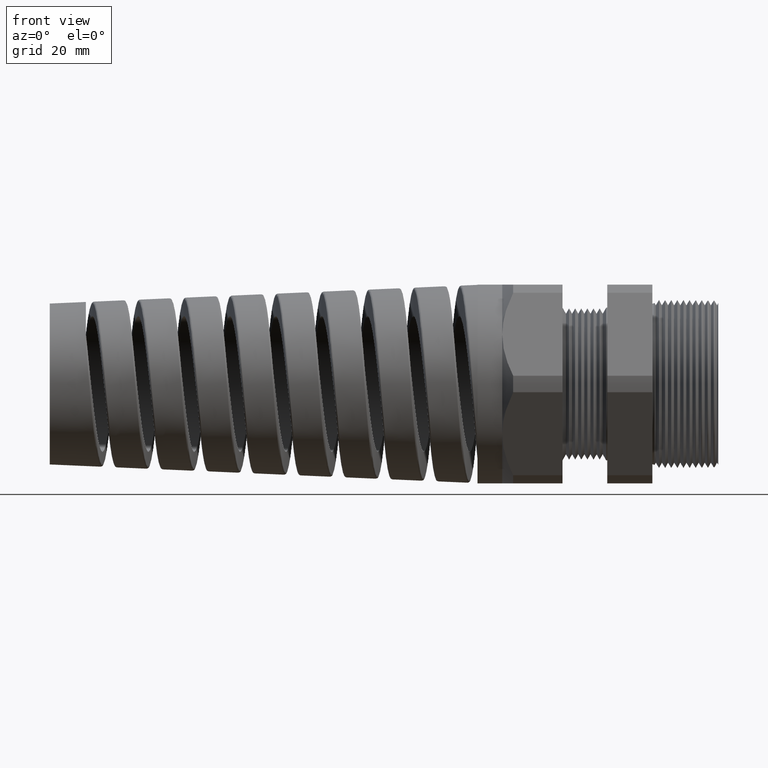
[diagram: clean part render]
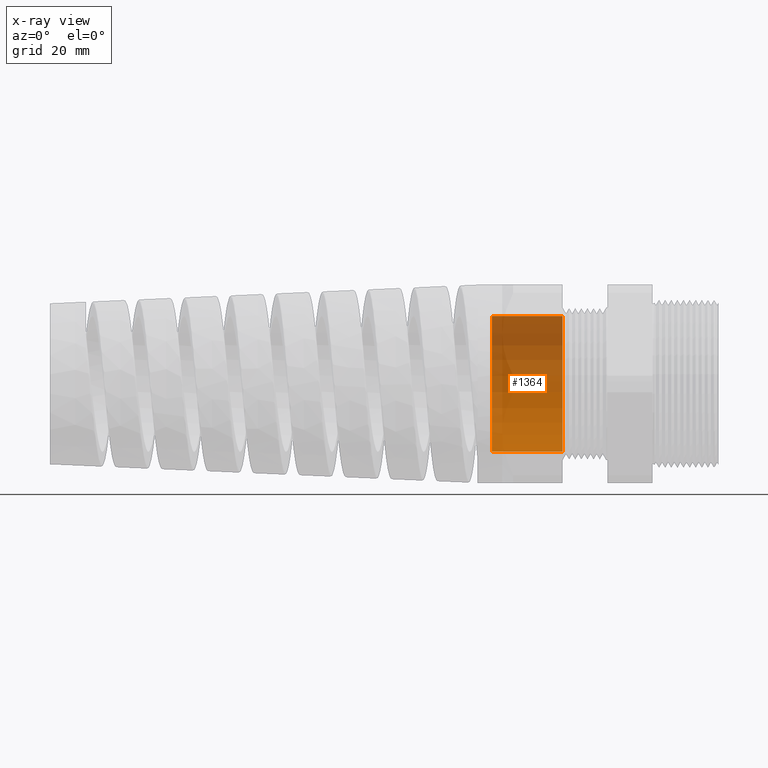
[diagram: x-ray — body ghosted, one internal face saturated and labeled with its STEP entity id]
A machine part, front view, then the same camera in x-ray: the body is ghosted and one INTERNAL B-rep face — a face not visible from any outside direction — is saturated and labeled: STEP entity #1364.
In plain terms, the highlighted cylindrical surface (partial cylindrical patch) has radius 11.2776 mm, axis along (1, 0, 0).
Its self-contained STEP definition (entity closure, byte-faithful):
#1358 = VERTEX_POINT ( 'NONE', #12101 ) ;
#1360 = EDGE_CURVE ( 'NONE', #1361, #1358, #12100, .T. ) ;
#1361 = VERTEX_POINT ( 'NONE', #12095 ) ;
#1364 = ADVANCED_FACE ( 'NONE', ( #12089 ), #12087, .T. ) ;
#1365 = EDGE_LOOP ( 'NONE', ( #1375, #1376, #1379, #1382 ) ) ;
#1375 = ORIENTED_EDGE ( 'NONE', *, *, #1360, .T. ) ;
#1376 = ORIENTED_EDGE ( 'NONE', *, *, #1377, .T. ) ;
#1377 = EDGE_CURVE ( 'NONE', #1358, #1378, #12141, .T. ) ;
#1378 = VERTEX_POINT ( 'NONE', #12137 ) ;
#1379 = ORIENTED_EDGE ( 'NONE', *, *, #1380, .F. ) ;
#1380 = EDGE_CURVE ( 'NONE', #1381, #1378, #12136, .T. ) ;
#1381 = VERTEX_POINT ( 'NONE', #12131 ) ;
#1382 = ORIENTED_EDGE ( 'NONE', *, *, #1383, .F. ) ;
#1383 = EDGE_CURVE ( 'NONE', #1361, #1381, #12130, .T. ) ;
#12087 = CYLINDRICAL_SURFACE ( 'NONE', #12088, 0.4439999999999999500 ) ;
#12088 = AXIS2_PLACEMENT_3D ( 'NONE', #12150, #12149, #12148 ) ;
#12089 = FACE_OUTER_BOUND ( 'NONE', #1365, .T. ) ;
#12095 = CARTESIAN_POINT ( 'NONE',  ( -1.359999999999999900, 0.0000000000000000000, -0.4439999999999999500 ) ) ;
#12096 = DIRECTION ( 'NONE',  ( 0.0000000000000000000, 0.0000000000000000000, -1.000000000000000000 ) ) ;
#12097 = DIRECTION ( 'NONE',  ( 1.000000000000000000, 0.0000000000000000000, 0.0000000000000000000 ) ) ;
#12098 = CARTESIAN_POINT ( 'NONE',  ( -1.359999999999999900, 0.0000000000000000000, 0.0000000000000000000 ) ) ;
#12099 = AXIS2_PLACEMENT_3D ( 'NONE', #12098, #12097, #12096 ) ;
#12100 = CIRCLE ( 'NONE', #12099, 0.4439999999999999500 ) ;
#12101 = CARTESIAN_POINT ( 'NONE',  ( -1.359999999999999900, 5.437431788214247900E-017, 0.4439999999999999500 ) ) ;
#12127 = DIRECTION ( 'NONE',  ( 1.000000000000000000, 0.0000000000000000000, 0.0000000000000000000 ) ) ;
#12128 = VECTOR ( 'NONE', #12127, 39.37007874015748100 ) ;
#12129 = CARTESIAN_POINT ( 'NONE',  ( 0.0000000000000000000, 0.0000000000000000000, -0.4439999999999999500 ) ) ;
#12130 = LINE ( 'NONE', #12129, #12128 ) ;
#12131 = CARTESIAN_POINT ( 'NONE',  ( -0.8981889763779525900, 0.0000000000000000000, -0.4439999999999999500 ) ) ;
#12132 = DIRECTION ( 'NONE',  ( 0.0000000000000000000, 0.0000000000000000000, -1.000000000000000000 ) ) ;
#12133 = DIRECTION ( 'NONE',  ( 1.000000000000000000, 0.0000000000000000000, 0.0000000000000000000 ) ) ;
#12134 = CARTESIAN_POINT ( 'NONE',  ( -0.8981889763779525900, 0.0000000000000000000, 0.0000000000000000000 ) ) ;
#12135 = AXIS2_PLACEMENT_3D ( 'NONE', #12134, #12133, #12132 ) ;
#12136 = CIRCLE ( 'NONE', #12135, 0.4439999999999999500 ) ;
#12137 = CARTESIAN_POINT ( 'NONE',  ( -0.8981889763779525900, 5.437431788214247900E-017, 0.4439999999999999500 ) ) ;
#12138 = DIRECTION ( 'NONE',  ( 1.000000000000000000, 0.0000000000000000000, 0.0000000000000000000 ) ) ;
#12139 = VECTOR ( 'NONE', #12138, 39.37007874015748100 ) ;
#12140 = CARTESIAN_POINT ( 'NONE',  ( 0.0000000000000000000, 5.437431788214247900E-017, 0.4439999999999999500 ) ) ;
#12141 = LINE ( 'NONE', #12140, #12139 ) ;
#12148 = DIRECTION ( 'NONE',  ( 0.0000000000000000000, 0.0000000000000000000, -1.000000000000000000 ) ) ;
#12149 = DIRECTION ( 'NONE',  ( 1.000000000000000000, 0.0000000000000000000, 0.0000000000000000000 ) ) ;
#12150 = CARTESIAN_POINT ( 'NONE',  ( 0.0000000000000000000, 0.0000000000000000000, 0.0000000000000000000 ) ) ;